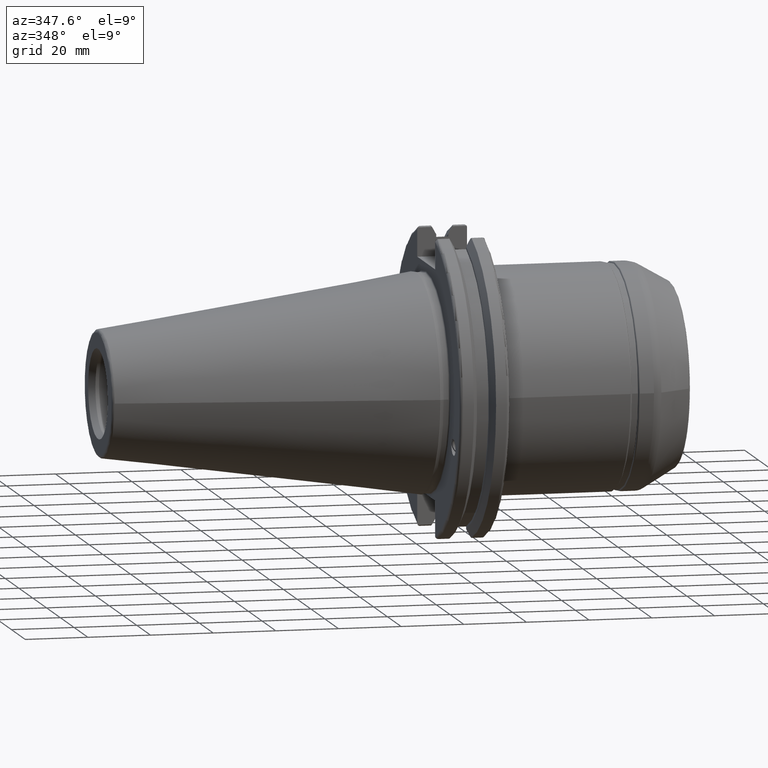
[diagram: clean part render]
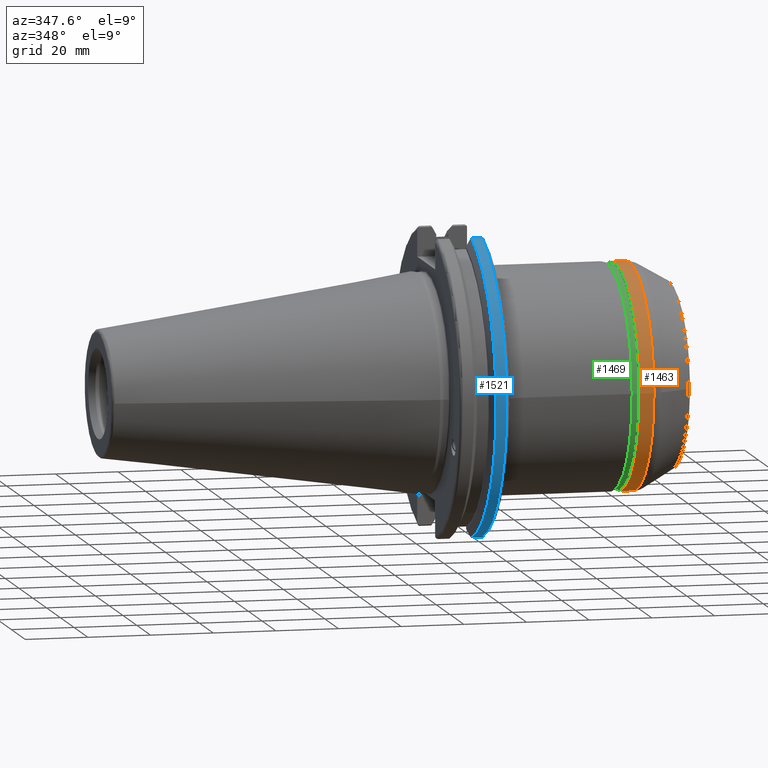
[diagram: same view with three faces highlighted in distinct colors, each labeled with its STEP entity id]
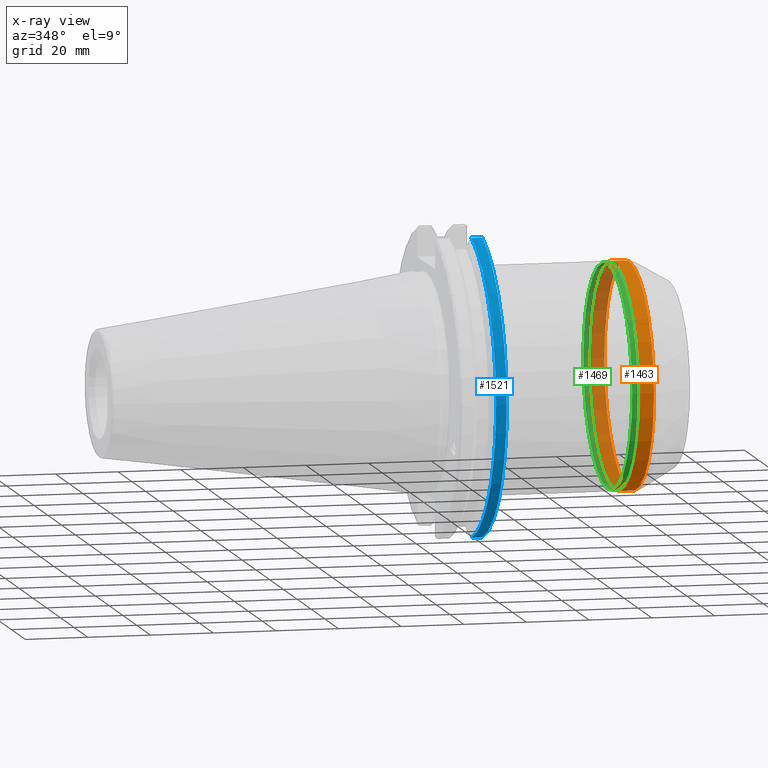
[diagram: x-ray of the same camera — body ghosted, the three highlighted faces saturated]
A machine part, auxiliary view with three faces highlighted in distinct colors.
The next image is the same camera in x-ray (body ghosted, the three faces saturated) — at least one of them is partly hidden behind the body in this view.
Their STEP definitions:

[orange] entity #1463 — the highlighted cylindrical surface (bore or boss wall) has radius 36 mm, axis along (1, 0, 0).
#153=FACE_OUTER_BOUND('',#240,.T.);
#240=EDGE_LOOP('',(#995,#996,#997,#998,#999,#1000));
#343=LINE('',#2274,#424);
#424=VECTOR('',#1806,36.);
#509=CIRCLE('',#1580,36.);
#510=CIRCLE('',#1581,36.);
#513=CIRCLE('',#1586,36.);
#514=CIRCLE('',#1587,36.);
#597=VERTEX_POINT('',#2261);
#598=VERTEX_POINT('',#2263);
#601=VERTEX_POINT('',#2273);
#602=VERTEX_POINT('',#2275);
#752=EDGE_CURVE('',#597,#598,#509,.T.);
#753=EDGE_CURVE('',#598,#597,#510,.T.);
#757=EDGE_CURVE('',#598,#601,#343,.T.);
#758=EDGE_CURVE('',#602,#601,#513,.T.);
#759=EDGE_CURVE('',#601,#602,#514,.T.);
#995=ORIENTED_EDGE('',*,*,#753,.F.);
#996=ORIENTED_EDGE('',*,*,#757,.T.);
#997=ORIENTED_EDGE('',*,*,#758,.F.);
#998=ORIENTED_EDGE('',*,*,#759,.F.);
#999=ORIENTED_EDGE('',*,*,#757,.F.);
#1000=ORIENTED_EDGE('',*,*,#752,.F.);
#1430=CYLINDRICAL_SURFACE('',#1585,36.);
#1463=ADVANCED_FACE('',(#153),#1430,.T.);
#1580=AXIS2_PLACEMENT_3D('',#2264,#1793,#1794);
#1581=AXIS2_PLACEMENT_3D('',#2265,#1795,#1796);
#1585=AXIS2_PLACEMENT_3D('',#2272,#1804,#1805);
#1586=AXIS2_PLACEMENT_3D('',#2276,#1807,#1808);
#1587=AXIS2_PLACEMENT_3D('',#2277,#1809,#1810);
#1793=DIRECTION('center_axis',(1.,0.,0.));
#1794=DIRECTION('ref_axis',(0.,-1.,1.83697019872103E-16));
#1795=DIRECTION('center_axis',(1.,0.,0.));
#1796=DIRECTION('ref_axis',(0.,-1.,1.83697019872103E-16));
#1804=DIRECTION('center_axis',(1.,0.,0.));
#1805=DIRECTION('ref_axis',(0.,1.,0.));
#1806=DIRECTION('',(-1.,0.,0.));
#1807=DIRECTION('center_axis',(-1.,0.,0.));
#1808=DIRECTION('ref_axis',(0.,-1.,1.83697019872103E-16));
#1809=DIRECTION('center_axis',(-1.,0.,0.));
#1810=DIRECTION('ref_axis',(0.,-1.,1.83697019872103E-16));
#2261=CARTESIAN_POINT('',(67.9689110867545,-4.40872847693047E-15,36.));
#2263=CARTESIAN_POINT('',(67.9689110867545,-36.,-4.40872847693047E-15));
#2264=CARTESIAN_POINT('Origin',(67.9689110867545,0.,0.));
#2265=CARTESIAN_POINT('Origin',(67.9689110867545,0.,0.));
#2272=CARTESIAN_POINT('Origin',(66.2986660917524,0.,0.));
#2273=CARTESIAN_POINT('',(63.5196152422706,-36.,-4.40872847693047E-15));
#2274=CARTESIAN_POINT('',(66.2986660917524,-36.,-4.40872847693047E-15));
#2275=CARTESIAN_POINT('',(63.5196152422706,-4.40872847693047E-15,36.));
#2276=CARTESIAN_POINT('Origin',(63.5196152422706,0.,0.));
#2277=CARTESIAN_POINT('Origin',(63.5196152422706,0.,0.));

[blue] entity #1521 — the highlighted cylindrical surface (partial cylindrical patch) has radius 49.2125 mm, axis along (1, 0, 0).
#211=FACE_OUTER_BOUND('',#313,.T.);
#313=EDGE_LOOP('',(#1312,#1313,#1314,#1315));
#407=LINE('',#2869,#488);
#408=LINE('',#2875,#489);
#488=VECTOR('',#2148,10.);
#489=VECTOR('',#2151,10.);
#565=CIRCLE('',#1702,49.2125);
#575=CIRCLE('',#1726,49.2125);
#697=VERTEX_POINT('',#2706);
#698=VERTEX_POINT('',#2715);
#728=VERTEX_POINT('',#2868);
#729=VERTEX_POINT('',#2874);
#893=EDGE_CURVE('',#697,#698,#565,.T.);
#937=EDGE_CURVE('',#698,#728,#407,.T.);
#939=EDGE_CURVE('',#729,#697,#408,.T.);
#940=EDGE_CURVE('',#729,#728,#575,.T.);
#1312=ORIENTED_EDGE('',*,*,#893,.F.);
#1313=ORIENTED_EDGE('',*,*,#939,.F.);
#1314=ORIENTED_EDGE('',*,*,#940,.T.);
#1315=ORIENTED_EDGE('',*,*,#937,.F.);
#1451=CYLINDRICAL_SURFACE('',#1725,49.2125);
#1521=ADVANCED_FACE('',(#211),#1451,.T.);
#1702=AXIS2_PLACEMENT_3D('',#2716,#2084,#2085);
#1725=AXIS2_PLACEMENT_3D('',#2873,#2149,#2150);
#1726=AXIS2_PLACEMENT_3D('',#2876,#2152,#2153);
#2084=DIRECTION('center_axis',(1.,0.,0.));
#2085=DIRECTION('ref_axis',(0.,-1.,1.60812264967664E-16));
#2148=DIRECTION('',(-1.,0.,0.));
#2149=DIRECTION('center_axis',(1.,0.,0.));
#2150=DIRECTION('ref_axis',(0.,-1.,1.22464679914735E-16));
#2151=DIRECTION('',(1.,0.,0.));
#2152=DIRECTION('center_axis',(1.,0.,0.));
#2153=DIRECTION('ref_axis',(0.,0.,-1.));
#2706=CARTESIAN_POINT('',(18.05,-13.4317035994433,47.3440544806494));
#2715=CARTESIAN_POINT('',(18.05,-13.4317035994433,-47.3440544806494));
#2716=CARTESIAN_POINT('Origin',(18.05,0.,0.));
#2868=CARTESIAN_POINT('',(14.6602090340487,-13.4317035994433,-47.3440544806494));
#2869=CARTESIAN_POINT('',(16.8551045170244,-13.4317035994433,-47.3440544806494));
#2873=CARTESIAN_POINT('Origin',(16.8551045170244,0.,0.));
#2874=CARTESIAN_POINT('',(14.6602090340487,-13.4317035994433,47.3440544806494));
#2875=CARTESIAN_POINT('',(16.8551045170244,-13.4317035994433,47.3440544806494));
#2876=CARTESIAN_POINT('Origin',(14.6602090340487,0.,0.));

[green] entity #1469 — the highlighted cylindrical surface (bore or boss wall) has radius 35.5 mm, axis along (1, 0, 0).
#159=FACE_OUTER_BOUND('',#247,.T.);
#247=EDGE_LOOP('',(#1028,#1029,#1030,#1031,#1032,#1033));
#347=LINE('',#2350,#428);
#428=VECTOR('',#1852,35.5);
#523=CIRCLE('',#1601,35.5);
#527=CIRCLE('',#1605,35.5);
#528=CIRCLE('',#1607,35.5);
#529=CIRCLE('',#1608,35.5);
#614=VERTEX_POINT('',#2339);
#615=VERTEX_POINT('',#2340);
#618=VERTEX_POINT('',#2349);
#619=VERTEX_POINT('',#2351);
#774=EDGE_CURVE('',#614,#615,#523,.T.);
#778=EDGE_CURVE('',#615,#614,#527,.T.);
#779=EDGE_CURVE('',#614,#618,#347,.T.);
#780=EDGE_CURVE('',#619,#618,#528,.T.);
#781=EDGE_CURVE('',#618,#619,#529,.T.);
#1028=ORIENTED_EDGE('',*,*,#774,.F.);
#1029=ORIENTED_EDGE('',*,*,#779,.T.);
#1030=ORIENTED_EDGE('',*,*,#780,.F.);
#1031=ORIENTED_EDGE('',*,*,#781,.F.);
#1032=ORIENTED_EDGE('',*,*,#779,.F.);
#1033=ORIENTED_EDGE('',*,*,#778,.F.);
#1432=CYLINDRICAL_SURFACE('',#1606,35.5);
#1469=ADVANCED_FACE('',(#159),#1432,.T.);
#1601=AXIS2_PLACEMENT_3D('',#2341,#1840,#1841);
#1605=AXIS2_PLACEMENT_3D('',#2347,#1848,#1849);
#1606=AXIS2_PLACEMENT_3D('',#2348,#1850,#1851);
#1607=AXIS2_PLACEMENT_3D('',#2352,#1853,#1854);
#1608=AXIS2_PLACEMENT_3D('',#2353,#1855,#1856);
#1840=DIRECTION('center_axis',(1.,0.,0.));
#1841=DIRECTION('ref_axis',(0.,-1.,1.83697019872103E-16));
#1848=DIRECTION('center_axis',(1.,0.,0.));
#1849=DIRECTION('ref_axis',(0.,-1.,1.83697019872103E-16));
#1850=DIRECTION('center_axis',(1.,0.,0.));
#1851=DIRECTION('ref_axis',(0.,1.,0.));
#1852=DIRECTION('',(-1.,0.,0.));
#1853=DIRECTION('center_axis',(-1.,0.,0.));
#1854=DIRECTION('ref_axis',(0.,-1.,1.83697019872103E-16));
#1855=DIRECTION('center_axis',(-1.,0.,0.));
#1856=DIRECTION('ref_axis',(0.,-1.,1.83697019872103E-16));
#2339=CARTESIAN_POINT('',(62.8845299461621,-35.5,-4.34749613697311E-15));
#2340=CARTESIAN_POINT('',(62.8845299461621,-4.34749613697311E-15,35.5));
#2341=CARTESIAN_POINT('Origin',(62.8845299461621,0.,0.));
#2347=CARTESIAN_POINT('Origin',(62.8845299461621,0.,0.));
#2348=CARTESIAN_POINT('Origin',(62.,0.,0.));
#2349=CARTESIAN_POINT('',(61.1154700538379,-35.5,-4.34749613697311E-15));
#2350=CARTESIAN_POINT('',(62.,-35.5,-4.34749613697311E-15));
#2351=CARTESIAN_POINT('',(61.1154700538379,-4.34749613697311E-15,35.5));
#2352=CARTESIAN_POINT('Origin',(61.1154700538379,0.,0.));
#2353=CARTESIAN_POINT('Origin',(61.1154700538379,0.,0.));